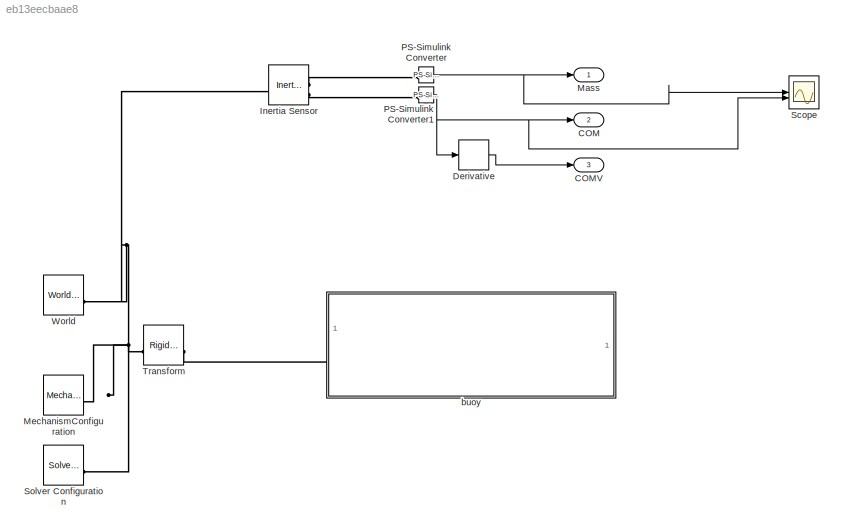
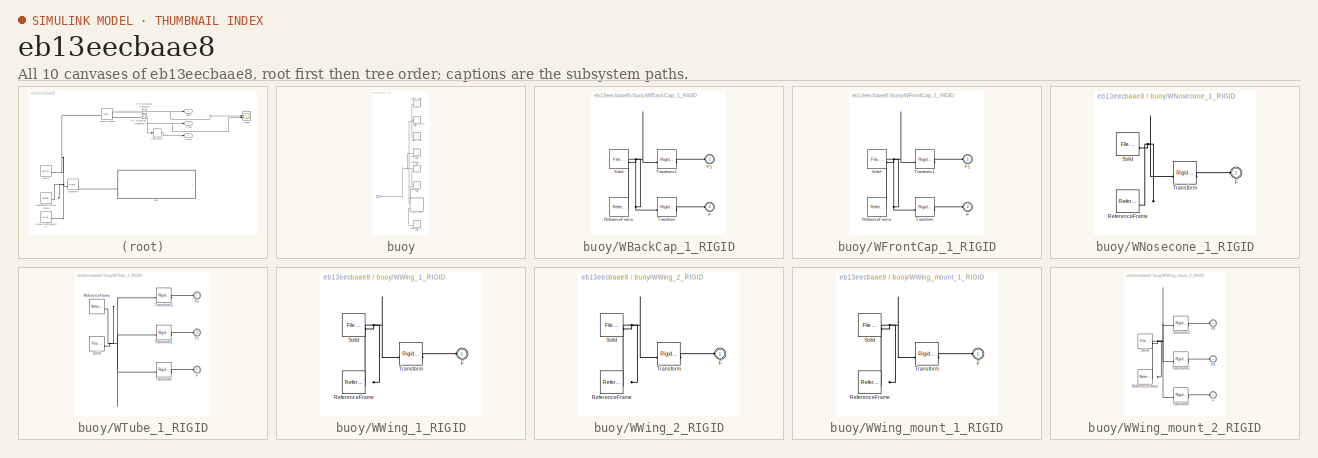
[diagram: thumbnail index - all 10 canvases of the model, root first then tree order]
MODEL slx_eb13eecbaae8
KIND model
CONFIG AbsTol = auto
CONFIG EnableMultiTasking = off
CONFIG FixedStep = auto
CONFIG MaxStep = auto
CONFIG MinStep = auto
CONFIG RelTol = 1e-3
CONFIG SampleTimeConstraint = Unconstrained
CONFIG SolverName = VariableStepAuto
CONFIG StartTime = 0.0
CONFIG StopTime = 10.0
WORKSPACE source: external: MATLAB File  (data not in archive)
BLOCK [Outport] COM
  Port = 2
BLOCK [Outport] COMV
  Port = 3
BLOCK [Derivative] Derivative
BLOCK [Reference] Inertia Sensor  REF=sm_lib/Body Elements/Inertia Sensor
  SourceBlock = sm_lib/Body Elements/Inertia Sensor
  SourceType = Inertia Sensor
BLOCK [Outport] Mass
BLOCK [Reference] MechanismConfiguration  REF=sm_lib/Utilities/Mechanism
Configuration
  SourceBlock = sm_lib/Utilities/Mechanism\nConfiguration
  SourceType = Mechanism\nConfiguration
BLOCK [Reference] PS-Simulink Converter  REF=nesl_utility/PS-Simulink
Converter
  SourceBlock = nesl_utility/PS-Simulink\nConverter
  SourceType = PS-Simulink\nConverter
BLOCK [Reference] PS-Simulink Converter1  REF=nesl_utility/PS-Simulink
Converter
  SourceBlock = nesl_utility/PS-Simulink\nConverter
  SourceType = PS-Simulink\nConverter
BLOCK [Scope] Scope
  Floating = off
  NumInputPorts = 2
  ScopeSpecificationString = Simulink.scopes.TimeScopeBlockCfg('CurrentConfiguration', extmgr.ConfigurationSet(extmgr.Configuration('Core','General UI',true),extmgr.Configuration('Core','Source UI',true),extmgr.Configuration('Sources','WiredSimulink',true),extmgr.Configuration('Visuals','Time Domain',true,'SerializedDisplays',{struct('MinYLimReal','-2.55094','MaxYLimReal','22.95848','YLabelReal','','MinYLimMag','0.00000','Max...<+1550ch>
BLOCK [Reference] Solver Configuration  REF=nesl_utility/Solver
Configuration
  SourceBlock = nesl_utility/Solver\nConfiguration
  SourceType = Solver\nConfiguration
BLOCK [Reference] Transform  REF=sm_lib/Frames and
Transforms/Rigid
Transform
  SourceBlock = sm_lib/Frames and\nTransforms/Rigid\nTransform
  SourceType = Rigid\nTransform
BLOCK [Reference] World  REF=sm_lib/Frames and
Transforms/World Frame
  SourceBlock = sm_lib/Frames and\nTransforms/World Frame
  SourceType = World Frame
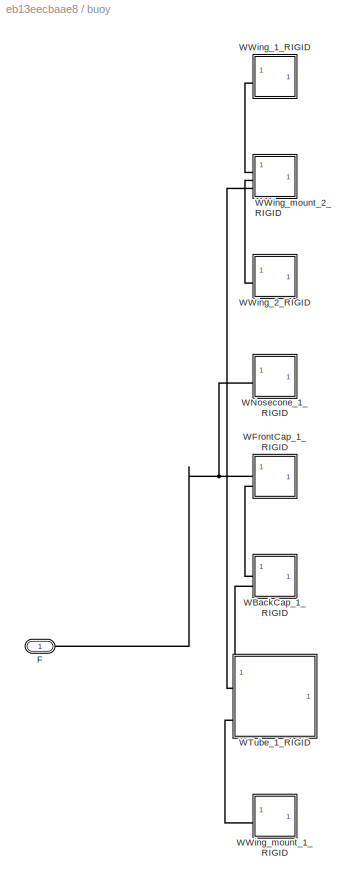
BLOCK [SubSystem] buoy
BLOCK [PMIOPort] buoy/F
  Side = Left
BLOCK [SubSystem] buoy/WBackCap_1_RIGID
BLOCK [PMIOPort] buoy/WBackCap_1_RIGID/F
  Port = 2
  Side = Left
BLOCK [PMIOPort] buoy/WBackCap_1_RIGID/F1
  Side = Left
BLOCK [Reference] buoy/WBackCap_1_RIGID/ReferenceFrame  REF=sm_lib/Frames and
Transforms/Reference
Frame
  SourceBlock = sm_lib/Frames and\nTransforms/Reference\nFrame
  SourceType = Reference\nFrame
BLOCK [Reference] buoy/WBackCap_1_RIGID/Solid  REF=sm_lib/Body Elements/File Solid
  SourceBlock = sm_lib/Body Elements/File Solid
  SourceType = File Solid
BLOCK [Reference] buoy/WBackCap_1_RIGID/Transform  REF=sm_lib/Frames and
Transforms/Rigid
Transform
  SourceBlock = sm_lib/Frames and\nTransforms/Rigid\nTransform
  SourceType = Rigid\nTransform
BLOCK [Reference] buoy/WBackCap_1_RIGID/Transform1  REF=sm_lib/Frames and
Transforms/Rigid
Transform
  SourceBlock = sm_lib/Frames and\nTransforms/Rigid\nTransform
  SourceType = Rigid\nTransform
BLOCK [SubSystem] buoy/WFrontCap_1_RIGID
BLOCK [PMIOPort] buoy/WFrontCap_1_RIGID/F
  Port = 2
  Side = Left
BLOCK [PMIOPort] buoy/WFrontCap_1_RIGID/F1
  Side = Left
BLOCK [Reference] buoy/WFrontCap_1_RIGID/ReferenceFrame  REF=sm_lib/Frames and
Transforms/Reference
Frame
  SourceBlock = sm_lib/Frames and\nTransforms/Reference\nFrame
  SourceType = Reference\nFrame
BLOCK [Reference] buoy/WFrontCap_1_RIGID/Solid  REF=sm_lib/Body Elements/File Solid
  SourceBlock = sm_lib/Body Elements/File Solid
  SourceType = File Solid
BLOCK [Reference] buoy/WFrontCap_1_RIGID/Transform  REF=sm_lib/Frames and
Transforms/Rigid
Transform
  SourceBlock = sm_lib/Frames and\nTransforms/Rigid\nTransform
  SourceType = Rigid\nTransform
BLOCK [Reference] buoy/WFrontCap_1_RIGID/Transform1  REF=sm_lib/Frames and
Transforms/Rigid
Transform
  SourceBlock = sm_lib/Frames and\nTransforms/Rigid\nTransform
  SourceType = Rigid\nTransform
BLOCK [SubSystem] buoy/WNosecone_1_RIGID
BLOCK [PMIOPort] buoy/WNosecone_1_RIGID/F
  Side = Left
BLOCK [Reference] buoy/WNosecone_1_RIGID/ReferenceFrame  REF=sm_lib/Frames and
Transforms/Reference
Frame
  SourceBlock = sm_lib/Frames and\nTransforms/Reference\nFrame
  SourceType = Reference\nFrame
BLOCK [Reference] buoy/WNosecone_1_RIGID/Solid  REF=sm_lib/Body Elements/File Solid
  SourceBlock = sm_lib/Body Elements/File Solid
  SourceType = File Solid
BLOCK [Reference] buoy/WNosecone_1_RIGID/Transform  REF=sm_lib/Frames and
Transforms/Rigid
Transform
  SourceBlock = sm_lib/Frames and\nTransforms/Rigid\nTransform
  SourceType = Rigid\nTransform
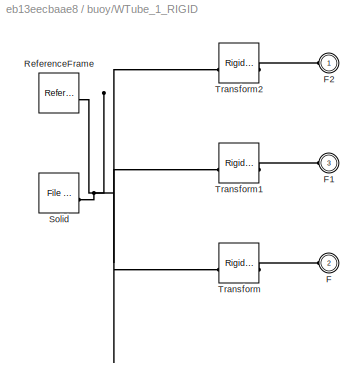
BLOCK [SubSystem] buoy/WTube_1_RIGID
BLOCK [PMIOPort] buoy/WTube_1_RIGID/F
  Port = 2
  Side = Left
BLOCK [PMIOPort] buoy/WTube_1_RIGID/F1
  Port = 3
  Side = Left
BLOCK [PMIOPort] buoy/WTube_1_RIGID/F2
  Side = Left
BLOCK [Reference] buoy/WTube_1_RIGID/ReferenceFrame  REF=sm_lib/Frames and
Transforms/Reference
Frame
  SourceBlock = sm_lib/Frames and\nTransforms/Reference\nFrame
  SourceType = Reference\nFrame
BLOCK [Reference] buoy/WTube_1_RIGID/Solid  REF=sm_lib/Body Elements/File Solid
  SourceBlock = sm_lib/Body Elements/File Solid
  SourceType = File Solid
BLOCK [Reference] buoy/WTube_1_RIGID/Transform  REF=sm_lib/Frames and
Transforms/Rigid
Transform
  SourceBlock = sm_lib/Frames and\nTransforms/Rigid\nTransform
  SourceType = Rigid\nTransform
BLOCK [Reference] buoy/WTube_1_RIGID/Transform1  REF=sm_lib/Frames and
Transforms/Rigid
Transform
  SourceBlock = sm_lib/Frames and\nTransforms/Rigid\nTransform
  SourceType = Rigid\nTransform
BLOCK [Reference] buoy/WTube_1_RIGID/Transform2  REF=sm_lib/Frames and
Transforms/Rigid
Transform
  SourceBlock = sm_lib/Frames and\nTransforms/Rigid\nTransform
  SourceType = Rigid\nTransform
BLOCK [SubSystem] buoy/WWing_1_RIGID
BLOCK [PMIOPort] buoy/WWing_1_RIGID/F
  Side = Left
BLOCK [Reference] buoy/WWing_1_RIGID/ReferenceFrame  REF=sm_lib/Frames and
Transforms/Reference
Frame
  SourceBlock = sm_lib/Frames and\nTransforms/Reference\nFrame
  SourceType = Reference\nFrame
BLOCK [Reference] buoy/WWing_1_RIGID/Solid  REF=sm_lib/Body Elements/File Solid
  SourceBlock = sm_lib/Body Elements/File Solid
  SourceType = File Solid
BLOCK [Reference] buoy/WWing_1_RIGID/Transform  REF=sm_lib/Frames and
Transforms/Rigid
Transform
  SourceBlock = sm_lib/Frames and\nTransforms/Rigid\nTransform
  SourceType = Rigid\nTransform
BLOCK [SubSystem] buoy/WWing_2_RIGID
BLOCK [PMIOPort] buoy/WWing_2_RIGID/F
  Side = Left
BLOCK [Reference] buoy/WWing_2_RIGID/ReferenceFrame  REF=sm_lib/Frames and
Transforms/Reference
Frame
  SourceBlock = sm_lib/Frames and\nTransforms/Reference\nFrame
  SourceType = Reference\nFrame
BLOCK [Reference] buoy/WWing_2_RIGID/Solid  REF=sm_lib/Body Elements/File Solid
  SourceBlock = sm_lib/Body Elements/File Solid
  SourceType = File Solid
BLOCK [Reference] buoy/WWing_2_RIGID/Transform  REF=sm_lib/Frames and
Transforms/Rigid
Transform
  SourceBlock = sm_lib/Frames and\nTransforms/Rigid\nTransform
  SourceType = Rigid\nTransform
BLOCK [SubSystem] buoy/WWing_mount_1_RIGID
BLOCK [PMIOPort] buoy/WWing_mount_1_RIGID/F
  Side = Left
BLOCK [Reference] buoy/WWing_mount_1_RIGID/ReferenceFrame  REF=sm_lib/Frames and
Transforms/Reference
Frame
  SourceBlock = sm_lib/Frames and\nTransforms/Reference\nFrame
  SourceType = Reference\nFrame
BLOCK [Reference] buoy/WWing_mount_1_RIGID/Solid  REF=sm_lib/Body Elements/File Solid
  SourceBlock = sm_lib/Body Elements/File Solid
  SourceType = File Solid
BLOCK [Reference] buoy/WWing_mount_1_RIGID/Transform  REF=sm_lib/Frames and
Transforms/Rigid
Transform
  SourceBlock = sm_lib/Frames and\nTransforms/Rigid\nTransform
  SourceType = Rigid\nTransform
BLOCK [SubSystem] buoy/WWing_mount_2_RIGID
BLOCK [PMIOPort] buoy/WWing_mount_2_RIGID/F
  Port = 2
  Side = Left
BLOCK [PMIOPort] buoy/WWing_mount_2_RIGID/F1
  Port = 3
  Side = Left
BLOCK [PMIOPort] buoy/WWing_mount_2_RIGID/F2
  Side = Left
BLOCK [Reference] buoy/WWing_mount_2_RIGID/ReferenceFrame  REF=sm_lib/Frames and
Transforms/Reference
Frame
  SourceBlock = sm_lib/Frames and\nTransforms/Reference\nFrame
  SourceType = Reference\nFrame
BLOCK [Reference] buoy/WWing_mount_2_RIGID/Solid  REF=sm_lib/Body Elements/File Solid
  SourceBlock = sm_lib/Body Elements/File Solid
  SourceType = File Solid
BLOCK [Reference] buoy/WWing_mount_2_RIGID/Transform  REF=sm_lib/Frames and
Transforms/Rigid
Transform
  SourceBlock = sm_lib/Frames and\nTransforms/Rigid\nTransform
  SourceType = Rigid\nTransform
BLOCK [Reference] buoy/WWing_mount_2_RIGID/Transform1  REF=sm_lib/Frames and
Transforms/Rigid
Transform
  SourceBlock = sm_lib/Frames and\nTransforms/Rigid\nTransform
  SourceType = Rigid\nTransform
BLOCK [Reference] buoy/WWing_mount_2_RIGID/Transform2  REF=sm_lib/Frames and
Transforms/Rigid
Transform
  SourceBlock = sm_lib/Frames and\nTransforms/Rigid\nTransform
  SourceType = Rigid\nTransform
LINE Derivative:1 -> COMV:1
NET PS-Simulink Converter1:1 -> COM:1, Derivative:1, Scope:2
NET PS-Simulink Converter:1 -> Mass:1, Scope:1
PNET net1: Inertia Sensor:LConn1 -- MechanismConfiguration:RConn1 -- Solver Configuration:RConn1 -- Transform:LConn1 -- World:RConn1
PLINE Inertia Sensor:RConn1 -- PS-Simulink Converter:LConn1
PLINE Inertia Sensor:RConn2 -- PS-Simulink Converter1:LConn1
PLINE Transform:RConn1 -- buoy:LConn1
PNET net2: buoy/F:RConn1 -- buoy/WFrontCap_1_RIGID:LConn1 -- buoy/WNosecone_1_RIGID:LConn1
PLINE buoy/WBackCap_1_RIGID/F1:RConn1 -- buoy/WBackCap_1_RIGID/Transform1:RConn1
PLINE buoy/WBackCap_1_RIGID/F:RConn1 -- buoy/WBackCap_1_RIGID/Transform:RConn1
PNET net3: buoy/WBackCap_1_RIGID/ReferenceFrame:RConn1 -- buoy/WBackCap_1_RIGID/Solid:RConn1 -- buoy/WBackCap_1_RIGID/Transform1:LConn1 -- buoy/WBackCap_1_RIGID/Transform:LConn1
PLINE buoy/WBackCap_1_RIGID:LConn1 -- buoy/WFrontCap_1_RIGID:LConn2
PLINE buoy/WBackCap_1_RIGID:LConn2 -- buoy/WTube_1_RIGID:LConn2
PLINE buoy/WFrontCap_1_RIGID/F1:RConn1 -- buoy/WFrontCap_1_RIGID/Transform1:RConn1
PLINE buoy/WFrontCap_1_RIGID/F:RConn1 -- buoy/WFrontCap_1_RIGID/Transform:RConn1
PNET net4: buoy/WFrontCap_1_RIGID/ReferenceFrame:RConn1 -- buoy/WFrontCap_1_RIGID/Solid:RConn1 -- buoy/WFrontCap_1_RIGID/Transform1:LConn1 -- buoy/WFrontCap_1_RIGID/Transform:LConn1
PLINE buoy/WNosecone_1_RIGID/F:RConn1 -- buoy/WNosecone_1_RIGID/Transform:RConn1
PNET net5: buoy/WNosecone_1_RIGID/ReferenceFrame:RConn1 -- buoy/WNosecone_1_RIGID/Solid:RConn1 -- buoy/WNosecone_1_RIGID/Transform:LConn1
PLINE buoy/WTube_1_RIGID/F1:RConn1 -- buoy/WTube_1_RIGID/Transform1:RConn1
PLINE buoy/WTube_1_RIGID/F2:RConn1 -- buoy/WTube_1_RIGID/Transform2:RConn1
PLINE buoy/WTube_1_RIGID/F:RConn1 -- buoy/WTube_1_RIGID/Transform:RConn1
PNET net6: buoy/WTube_1_RIGID/ReferenceFrame:RConn1 -- buoy/WTube_1_RIGID/Solid:RConn1 -- buoy/WTube_1_RIGID/Transform1:LConn1 -- buoy/WTube_1_RIGID/Transform2:LConn1 -- buoy/WTube_1_RIGID/Transform:LConn1
PLINE buoy/WTube_1_RIGID:LConn1 -- buoy/WWing_mount_2_RIGID:LConn3
PLINE buoy/WTube_1_RIGID:LConn3 -- buoy/WWing_mount_1_RIGID:LConn1
PLINE buoy/WWing_1_RIGID/F:RConn1 -- buoy/WWing_1_RIGID/Transform:RConn1
PNET net7: buoy/WWing_1_RIGID/ReferenceFrame:RConn1 -- buoy/WWing_1_RIGID/Solid:RConn1 -- buoy/WWing_1_RIGID/Transform:LConn1
PLINE buoy/WWing_1_RIGID:LConn1 -- buoy/WWing_mount_2_RIGID:LConn1
PLINE buoy/WWing_2_RIGID/F:RConn1 -- buoy/WWing_2_RIGID/Transform:RConn1
PNET net8: buoy/WWing_2_RIGID/ReferenceFrame:RConn1 -- buoy/WWing_2_RIGID/Solid:RConn1 -- buoy/WWing_2_RIGID/Transform:LConn1
PLINE buoy/WWing_2_RIGID:LConn1 -- buoy/WWing_mount_2_RIGID:LConn2
PLINE buoy/WWing_mount_1_RIGID/F:RConn1 -- buoy/WWing_mount_1_RIGID/Transform:RConn1
PNET net9: buoy/WWing_mount_1_RIGID/ReferenceFrame:RConn1 -- buoy/WWing_mount_1_RIGID/Solid:RConn1 -- buoy/WWing_mount_1_RIGID/Transform:LConn1
PLINE buoy/WWing_mount_2_RIGID/F1:RConn1 -- buoy/WWing_mount_2_RIGID/Transform1:RConn1
PLINE buoy/WWing_mount_2_RIGID/F2:RConn1 -- buoy/WWing_mount_2_RIGID/Transform2:RConn1
PLINE buoy/WWing_mount_2_RIGID/F:RConn1 -- buoy/WWing_mount_2_RIGID/Transform:RConn1
PNET net10: buoy/WWing_mount_2_RIGID/ReferenceFrame:RConn1 -- buoy/WWing_mount_2_RIGID/Solid:RConn1 -- buoy/WWing_mount_2_RIGID/Transform1:LConn1 -- buoy/WWing_mount_2_RIGID/Transform2:LConn1 -- buoy/WWing_mount_2_RIGID/Transform:LConn1
note: NET lines group one-source signal fan-out (src -> all destinations, sorted); 1:1 wires keep LINE; PNET lines group multi-terminal physical nets as a canonical sorted terminal list (undirected conserving connections); 2-terminal nets keep the pairwise PLINE form
